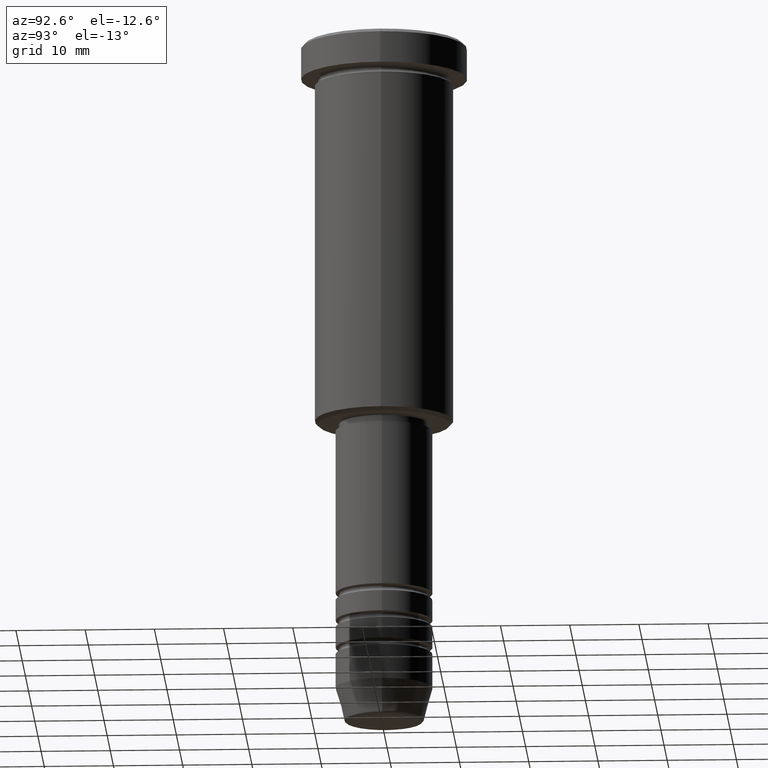
[diagram: clean part render]
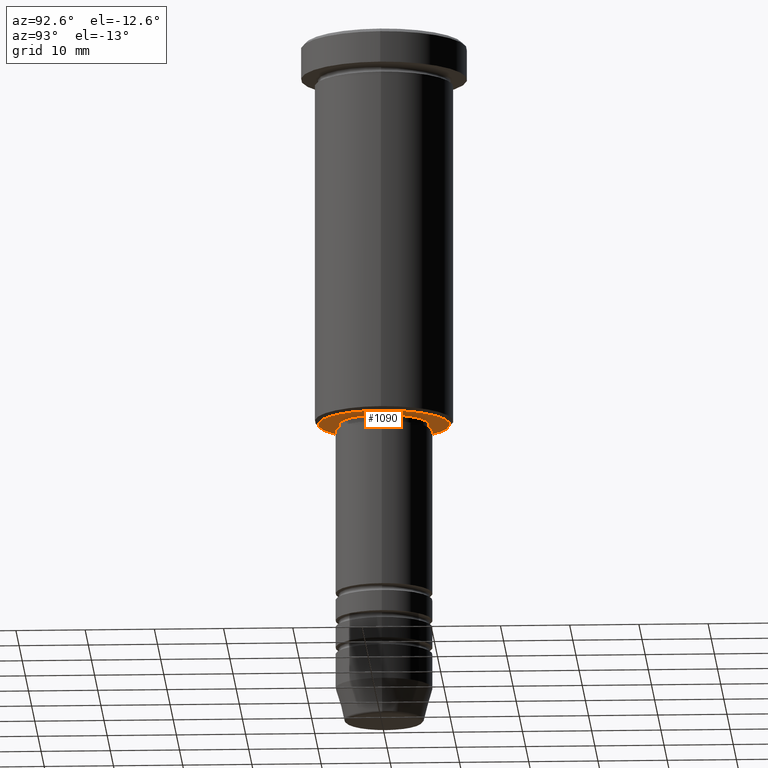
[diagram: same view with one face highlighted and labeled with its STEP entity id]
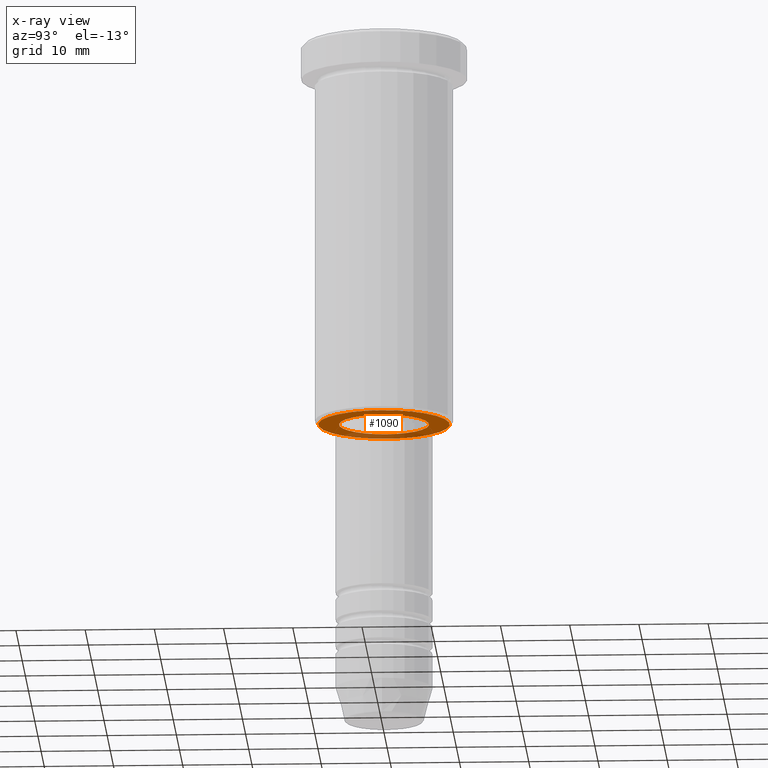
[diagram: x-ray of the same camera — body ghosted, the highlighted face saturated]
A machine part, auxiliary view. The second image highlights one B-rep face of the part: STEP entity #1090.
The next image is the same camera in x-ray: the body ghosted, the highlighted face saturated — about 22% of this face is hidden behind the body in this view.
In plain terms, the highlighted planar face has unit normal (0, 0, -1).
Its self-contained STEP definition (entity closure, byte-faithful):
#19 = CARTESIAN_POINT ( 'NONE',  ( 0.000000000000000000, 0.000000000000000000, -56.00000000000000000 ) ) ;
#23 = VERTEX_POINT ( 'NONE', #953 ) ;
#49 = CARTESIAN_POINT ( 'NONE',  ( 0.000000000000000000, 0.000000000000000000, -56.00000000000000000 ) ) ;
#64 = PLANE ( 'NONE',  #487 ) ;
#113 = CARTESIAN_POINT ( 'NONE',  ( 0.000000000000000000, 0.000000000000000000, -56.00000000000000000 ) ) ;
#157 = DIRECTION ( 'NONE',  ( -0.000000000000000000, -0.000000000000000000, 1.000000000000000000 ) ) ;
#174 = VERTEX_POINT ( 'NONE', #805 ) ;
#251 = EDGE_LOOP ( 'NONE', ( #1057, #541 ) ) ;
#344 = VERTEX_POINT ( 'NONE', #810 ) ;
#410 = CIRCLE ( 'NONE', #625, 9.500000000000035527 ) ;
#476 = DIRECTION ( 'NONE',  ( 0.000000000000000000, 0.000000000000000000, -1.000000000000000000 ) ) ;
#485 = CIRCLE ( 'NONE', #909, 6.500000000000000000 ) ;
#487 = AXIS2_PLACEMENT_3D ( 'NONE', #795, #1158, #771 ) ;
#496 = DIRECTION ( 'NONE',  ( -1.000000000000000000, 0.000000000000000000, 0.000000000000000000 ) ) ;
#498 = FACE_BOUND ( 'NONE', #958, .T. ) ;
#514 = FACE_OUTER_BOUND ( 'NONE', #251, .T. ) ;
#541 = ORIENTED_EDGE ( 'NONE', *, *, #1148, .T. ) ;
#625 = AXIS2_PLACEMENT_3D ( 'NONE', #19, #476, #764 ) ;
#646 = CARTESIAN_POINT ( 'NONE',  ( 0.000000000000000000, 0.000000000000000000, -56.00000000000000000 ) ) ;
#662 = ORIENTED_EDGE ( 'NONE', *, *, #1028, .T. ) ;
#672 = CIRCLE ( 'NONE', #931, 9.500000000000035527 ) ;
#752 = DIRECTION ( 'NONE',  ( 0.000000000000000000, 0.000000000000000000, -1.000000000000000000 ) ) ;
#758 = CIRCLE ( 'NONE', #1101, 6.500000000000000000 ) ;
#764 = DIRECTION ( 'NONE',  ( -1.000000000000000000, 0.000000000000000000, 0.000000000000000000 ) ) ;
#771 = DIRECTION ( 'NONE',  ( -1.000000000000000000, 0.000000000000000000, -0.000000000000000000 ) ) ;
#795 = CARTESIAN_POINT ( 'NONE',  ( 0.000000000000000000, 9.999999999999998224, -56.00000000000000000 ) ) ;
#805 = CARTESIAN_POINT ( 'NONE',  ( 9.500000000000035527, 0.000000000000000000, -56.00000000000000000 ) ) ;
#810 = CARTESIAN_POINT ( 'NONE',  ( -6.500000000000000000, 7.960204194457795477E-16, -56.00000000000000000 ) ) ;
#830 = EDGE_CURVE ( 'NONE', #23, #344, #485, .T. ) ;
#872 = ORIENTED_EDGE ( 'NONE', *, *, #830, .T. ) ;
#874 = VERTEX_POINT ( 'NONE', #1104 ) ;
#875 = DIRECTION ( 'NONE',  ( 1.000000000000000000, 0.000000000000000000, 0.000000000000000000 ) ) ;
#876 = EDGE_CURVE ( 'NONE', #174, #874, #672, .T. ) ;
#909 = AXIS2_PLACEMENT_3D ( 'NONE', #113, #1111, #1125 ) ;
#931 = AXIS2_PLACEMENT_3D ( 'NONE', #646, #752, #496 ) ;
#953 = CARTESIAN_POINT ( 'NONE',  ( 6.500000000000000000, 0.000000000000000000, -56.00000000000000000 ) ) ;
#958 = EDGE_LOOP ( 'NONE', ( #872, #662 ) ) ;
#1028 = EDGE_CURVE ( 'NONE', #344, #23, #758, .T. ) ;
#1057 = ORIENTED_EDGE ( 'NONE', *, *, #876, .T. ) ;
#1090 = ADVANCED_FACE ( 'NONE', ( #514, #498 ), #64, .T. ) ;
#1101 = AXIS2_PLACEMENT_3D ( 'NONE', #49, #157, #875 ) ;
#1104 = CARTESIAN_POINT ( 'NONE',  ( -9.500000000000035527, 1.194030629168671442E-15, -56.00000000000000000 ) ) ;
#1111 = DIRECTION ( 'NONE',  ( -0.000000000000000000, -0.000000000000000000, 1.000000000000000000 ) ) ;
#1125 = DIRECTION ( 'NONE',  ( 1.000000000000000000, 0.000000000000000000, 0.000000000000000000 ) ) ;
#1148 = EDGE_CURVE ( 'NONE', #874, #174, #410, .T. ) ;
#1158 = DIRECTION ( 'NONE',  ( 0.000000000000000000, 0.000000000000000000, -1.000000000000000000 ) ) ;